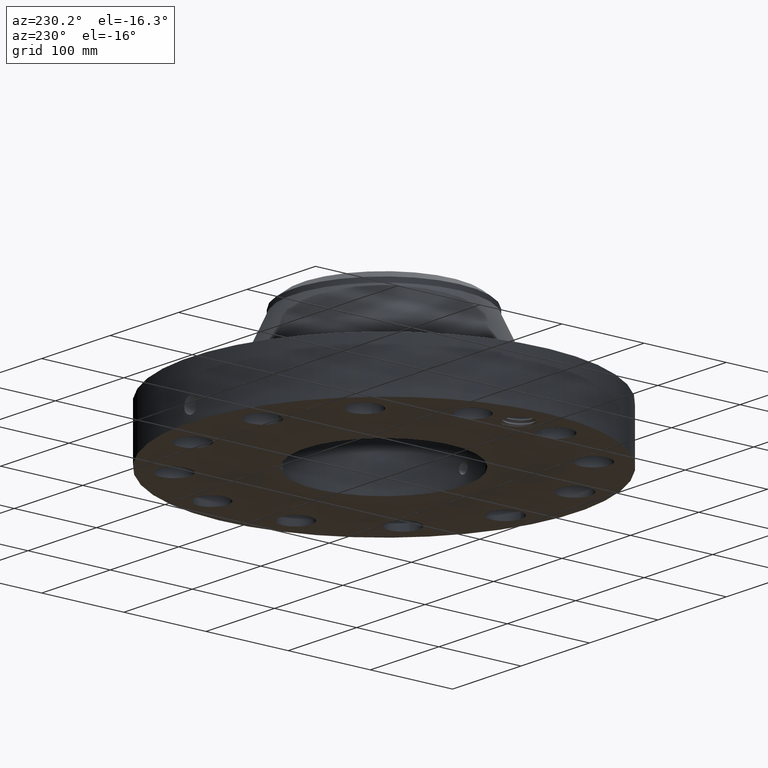
[diagram: clean part render]
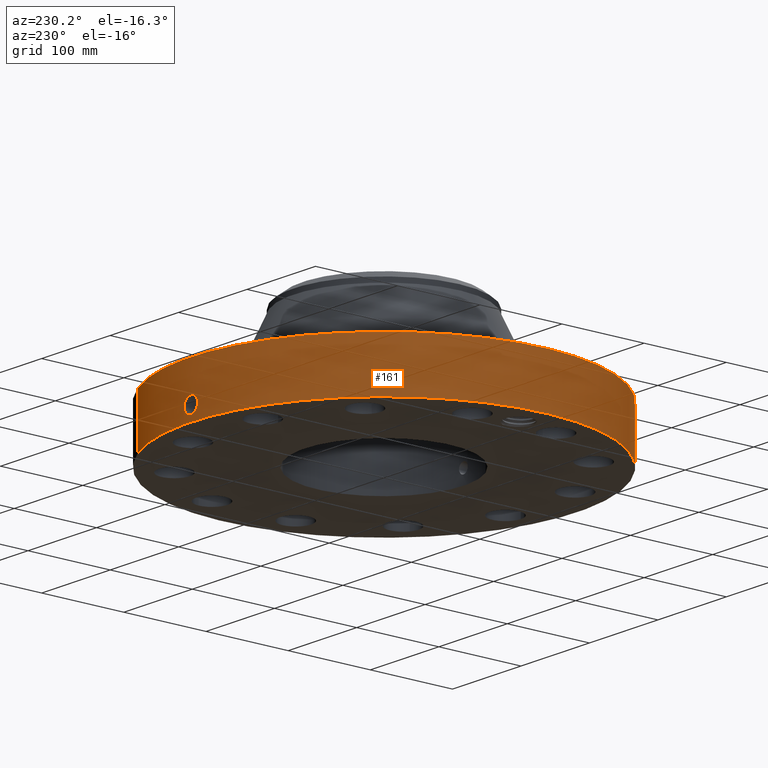
[diagram: same view with one face highlighted and labeled with its STEP entity id]
A machine part, auxiliary view. The second image highlights one B-rep face of the part: STEP entity #161.
In plain terms, the highlighted cylindrical surface (partial cylindrical patch) has radius 234.95 mm, axis along (0, 0, -1).
Its self-contained STEP definition (entity closure, byte-faithful):
#38=AXIS2_PLACEMENT_3D('Cylinder Axis2P3D',#35,#36,#37) ;
#42=AXIS2_PLACEMENT_3D('Circle Axis2P3D',#40,#41,$) ;
#58=AXIS2_PLACEMENT_3D('Circle Axis2P3D',#56,#57,$) ;
#35=CARTESIAN_POINT('Axis2P3D Location',(0.,0.,3.44000000001)) ;
#40=CARTESIAN_POINT('Axis2P3D Location',(0.,0.,0.250000000001)) ;
#44=CARTESIAN_POINT('Vertex',(-4.43468623211,-8.11763869752,0.250000000001)) ;
#46=CARTESIAN_POINT('Vertex',(4.43468623211,8.11763869752,0.250000000001)) ;
#49=CARTESIAN_POINT('Line Origine',(-4.43468623211,-8.11763869752,1.50000000001)) ;
#53=CARTESIAN_POINT('Vertex',(-4.43468623211,-8.11763869752,2.75000000001)) ;
#56=CARTESIAN_POINT('Axis2P3D Location',(0.,0.,2.75000000001)) ;
#60=CARTESIAN_POINT('Vertex',(4.43468623211,8.11763869752,2.75000000001)) ;
#63=CARTESIAN_POINT('Line Origine',(4.43468623211,8.11763869752,1.50000000001)) ;
#75=CARTESIAN_POINT('Control Point',(-0.0577122279092,9.24981996038,1.28937881085)) ;
#76=CARTESIAN_POINT('Control Point',(-0.0388831117022,9.24993744053,1.29249290555)) ;
#77=CARTESIAN_POINT('Control Point',(-0.0198012647059,9.2499984947,1.29407982446)) ;
#78=CARTESIAN_POINT('Control Point',(-0.000716155195038,9.24999997231,1.29411849907)) ;
#79=CARTESIAN_POINT('Vertex',(-0.0576987125907,9.24982030419,1.28938132981)) ;
#81=CARTESIAN_POINT('Vertex',(-0.000716037525972,9.24999997232,1.29411850953)) ;
#85=CARTESIAN_POINT('Control Point',(-0.0576986100086,9.24982004534,1.28938075593)) ;
#86=CARTESIAN_POINT('Control Point',(-0.0972388712134,9.24957340074,1.28460368431)) ;
#87=CARTESIAN_POINT('Control Point',(-0.136042403852,9.24906823566,1.27261777151)) ;
#88=CARTESIAN_POINT('Control Point',(-0.171684024295,9.24840659771,1.25429687549)) ;
#89=CARTESIAN_POINT('Vertex',(-0.171684024295,9.24840659771,1.25429687549)) ;
#93=CARTESIAN_POINT('Control Point',(-0.0303579637323,9.24995018336,0.531140526525)) ;
#94=CARTESIAN_POINT('Control Point',(-0.0866896181055,9.24976530514,0.538299302627)) ;
#95=CARTESIAN_POINT('Control Point',(-0.141429977572,9.24915682428,0.555910121262)) ;
#96=CARTESIAN_POINT('Control Point',(-0.191852873452,9.24818039423,0.58347489366)) ;
#97=CARTESIAN_POINT('Control Point',(-0.265091161566,9.24632230611,0.642891892046)) ;
#98=CARTESIAN_POINT('Control Point',(-0.317152065424,9.24459179831,0.719282402493)) ;
#99=CARTESIAN_POINT('Control Point',(-0.334230959669,9.24397520838,0.751953215984)) ;
#100=CARTESIAN_POINT('Control Point',(-0.368164816196,9.24269550121,0.840206510786)) ;
#101=CARTESIAN_POINT('Control Point',(-0.375212248365,9.24237778102,0.934442991676)) ;
#102=CARTESIAN_POINT('Control Point',(-0.369077403465,9.24264042876,0.991998314373)) ;
#103=CARTESIAN_POINT('Control Point',(-0.339634169542,9.24384245124,1.0910854381)) ;
#104=CARTESIAN_POINT('Control Point',(-0.280074281823,9.24582159481,1.17422371253)) ;
#105=CARTESIAN_POINT('Control Point',(-0.248105903439,9.2467734423,1.20684009761)) ;
#106=CARTESIAN_POINT('Control Point',(-0.211513521993,9.24766721753,1.23382328045)) ;
#107=CARTESIAN_POINT('Control Point',(-0.171684024295,9.24840659771,1.25429687549)) ;
#108=CARTESIAN_POINT('Vertex',(-0.0303579637324,9.24995018336,0.531140526525)) ;
#112=CARTESIAN_POINT('Control Point',(-0.0303579637323,9.24995018336,0.531140526525)) ;
#113=CARTESIAN_POINT('Control Point',(-0.0202329140247,9.24998341337,0.530867613115)) ;
#114=CARTESIAN_POINT('Control Point',(-0.0101025380922,9.25000000302,0.530945817478)) ;
#115=CARTESIAN_POINT('Control Point',(2.7287835445E-006,9.25000000004,0.531374667805)) ;
#116=CARTESIAN_POINT('Vertex',(2.72878353883E-006,9.25000000004,0.531374667805)) ;
#120=CARTESIAN_POINT('Control Point',(0.193198543476,9.24798217578,0.586362555987)) ;
#121=CARTESIAN_POINT('Control Point',(0.149227359245,9.24890077278,0.561425936484)) ;
#122=CARTESIAN_POINT('Control Point',(0.101161621233,9.24962696297,0.543566773477)) ;
#123=CARTESIAN_POINT('Control Point',(0.0508219353374,9.24999998504,0.533531348382)) ;
#124=CARTESIAN_POINT('Control Point',(2.72878354451E-006,9.25000000004,0.531374667805)) ;
#125=CARTESIAN_POINT('Vertex',(0.193198543476,9.24798217578,0.586362555987)) ;
#129=CARTESIAN_POINT('Control Point',(0.193198543476,9.24798217578,0.586362555987)) ;
#130=CARTESIAN_POINT('Control Point',(0.222182230351,9.24737668087,0.602799573892)) ;
#131=CARTESIAN_POINT('Control Point',(0.249502999843,9.24669233064,0.622118765396)) ;
#132=CARTESIAN_POINT('Control Point',(0.274755972168,9.24596348009,0.644146072548)) ;
#133=CARTESIAN_POINT('Control Point',(0.341566320491,9.24382713382,0.715930898846)) ;
#134=CARTESIAN_POINT('Control Point',(0.384140996412,9.24205912373,0.805687968533)) ;
#135=CARTESIAN_POINT('Control Point',(0.399122328662,9.24137110782,0.870114136747)) ;
#136=CARTESIAN_POINT('Control Point',(0.399880490055,9.24137894209,0.984466468436)) ;
#137=CARTESIAN_POINT('Control Point',(0.359702769914,9.24303009253,1.08921119212)) ;
#138=CARTESIAN_POINT('Control Point',(0.335403922729,9.243981893,1.13068880531)) ;
#139=CARTESIAN_POINT('Control Point',(0.266593471177,9.24636786059,1.21431004626)) ;
#140=CARTESIAN_POINT('Control Point',(0.173832366649,9.24860314758,1.26884677058)) ;
#141=CARTESIAN_POINT('Control Point',(0.116912943239,9.24954506221,1.28861831772)) ;
#142=CARTESIAN_POINT('Control Point',(0.0580168735722,9.25000016226,1.2969986452)) ;
#143=CARTESIAN_POINT('Control Point',(-2.58579355359E-005,9.25,1.29415298432)) ;
#144=CARTESIAN_POINT('Vertex',(-2.58579355368E-005,9.25,1.29415298432)) ;
#148=CARTESIAN_POINT('Control Point',(-0.000716037515891,9.24999997232,1.29411850951)) ;
#149=CARTESIAN_POINT('Control Point',(-0.000370971819323,9.24999999904,1.29413606443)) ;
#150=CARTESIAN_POINT('Control Point',(-2.58579412324E-005,9.25,1.29415298432)) ;
#36=DIRECTION('Axis2P3D Direction',(0.,0.,-0.0393700787402)) ;
#37=DIRECTION('Axis2P3D XDirection',(0.0188750212049,0.0345504945626,0.)) ;
#41=DIRECTION('Axis2P3D Direction',(0.,0.,-0.0393700787402)) ;
#50=DIRECTION('Vector Direction',(0.,0.,-0.0393700787402)) ;
#57=DIRECTION('Axis2P3D Direction',(0.,0.,-0.0393700787402)) ;
#64=DIRECTION('Vector Direction',(0.,0.,-0.0393700787402)) ;
#51=VECTOR('Line Direction',#50,0.0393700787402) ;
#65=VECTOR('Line Direction',#64,0.0393700787402) ;
#69=ORIENTED_EDGE('',*,*,#48,.F.) ;
#70=ORIENTED_EDGE('',*,*,#55,.T.) ;
#71=ORIENTED_EDGE('',*,*,#62,.T.) ;
#72=ORIENTED_EDGE('',*,*,#67,.F.) ;
#153=ORIENTED_EDGE('',*,*,#83,.F.) ;
#154=ORIENTED_EDGE('',*,*,#91,.T.) ;
#155=ORIENTED_EDGE('',*,*,#110,.F.) ;
#156=ORIENTED_EDGE('',*,*,#118,.T.) ;
#157=ORIENTED_EDGE('',*,*,#127,.F.) ;
#158=ORIENTED_EDGE('',*,*,#146,.T.) ;
#159=ORIENTED_EDGE('',*,*,#151,.F.) ;
#160=FACE_BOUND('',#152,.T.) ;
#161=ADVANCED_FACE('PartBody',(#73,#160),#39,.T.) ;
#74=B_SPLINE_CURVE_WITH_KNOTS('',3,(#75,#76,#77,#78),.UNSPECIFIED.,.F.,.U.,(4,4),(4.40401004419,6.52132959016),.UNSPECIFIED.) ;
#84=B_SPLINE_CURVE_WITH_KNOTS('',3,(#85,#86,#87,#88),.UNSPECIFIED.,.F.,.U.,(4,4),(0.,4.47507740792),.UNSPECIFIED.) ;
#92=B_SPLINE_CURVE_WITH_KNOTS('',5,(#93,#94,#95,#96,#97,#98,#99,#100,#101,#102,#103,#104,#105,#106,#107),.UNSPECIFIED.,.F.,.U.,(6,3,3,3,6),(0.,9.86881421267,16.4431607885,26.8471252424,35.1819542062),.UNSPECIFIED.) ;
#111=B_SPLINE_CURVE_WITH_KNOTS('',3,(#112,#113,#114,#115),.UNSPECIFIED.,.F.,.U.,(4,4),(0.,1.05611856961),.UNSPECIFIED.) ;
#119=B_SPLINE_CURVE_WITH_KNOTS('',4,(#120,#121,#122,#123,#124),.UNSPECIFIED.,.F.,.U.,(5,5),(0.,7.08160188591),.UNSPECIFIED.) ;
#128=B_SPLINE_CURVE_WITH_KNOTS('',5,(#129,#130,#131,#132,#133,#134,#135,#136,#137,#138,#139,#140,#141,#142,#143),.UNSPECIFIED.,.F.,.U.,(6,3,3,3,6),(0.,5.8348135589,17.1123821541,25.5884423883,36.4378326523),.UNSPECIFIED.) ;
#147=B_SPLINE_CURVE_WITH_KNOTS('',2,(#148,#149,#150),.UNSPECIFIED.,.F.,.U.,(3,3),(1.04307349026,1.06887706797),.UNSPECIFIED.) ;
#43=CIRCLE('generated circle',#42,9.25000000004) ;
#59=CIRCLE('generated circle',#58,9.25000000004) ;
#39=CYLINDRICAL_SURFACE('generated cylinder',#38,9.25000000004) ;
#48=EDGE_CURVE('',#45,#47,#43,.T.) ;
#55=EDGE_CURVE('',#45,#54,#52,.F.) ;
#62=EDGE_CURVE('',#54,#61,#59,.T.) ;
#67=EDGE_CURVE('',#47,#61,#66,.F.) ;
#83=EDGE_CURVE('',#80,#82,#74,.T.) ;
#91=EDGE_CURVE('',#80,#90,#84,.T.) ;
#110=EDGE_CURVE('',#109,#90,#92,.T.) ;
#118=EDGE_CURVE('',#109,#117,#111,.T.) ;
#127=EDGE_CURVE('',#126,#117,#119,.T.) ;
#146=EDGE_CURVE('',#126,#145,#128,.T.) ;
#151=EDGE_CURVE('',#82,#145,#147,.T.) ;
#68=EDGE_LOOP('',(#69,#70,#71,#72)) ;
#152=EDGE_LOOP('',(#153,#154,#155,#156,#157,#158,#159)) ;
#73=FACE_OUTER_BOUND('',#68,.T.) ;
#52=LINE('Line',#49,#51) ;
#66=LINE('Line',#63,#65) ;
#45=VERTEX_POINT('',#44) ;
#47=VERTEX_POINT('',#46) ;
#54=VERTEX_POINT('',#53) ;
#61=VERTEX_POINT('',#60) ;
#80=VERTEX_POINT('',#79) ;
#82=VERTEX_POINT('',#81) ;
#90=VERTEX_POINT('',#89) ;
#109=VERTEX_POINT('',#108) ;
#117=VERTEX_POINT('',#116) ;
#126=VERTEX_POINT('',#125) ;
#145=VERTEX_POINT('',#144) ;